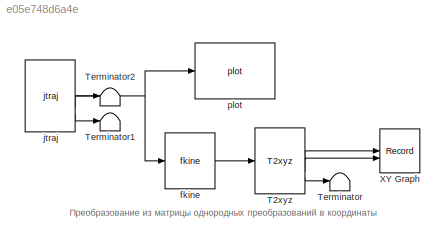
MODEL slx_e05e748d6a4e
KIND model
CONFIG AbsTol = auto
CONFIG EnableMultiTasking = off
CONFIG FixedStep = auto
CONFIG MaxStep = auto
CONFIG MinStep = auto
CONFIG RelTol = 1e-3
CONFIG SampleTimeConstraint = Unconstrained
CONFIG SolverName = VariableStepAuto
CONFIG StartTime = 0.0
CONFIG StopTime = 10.0
BLOCK [Reference] T2xyz  REF=roblocks/Toolbox/T2xyz  (lib defined in mdl_2a292b13c81b, mdl_69400f8cfe22, +12 more)
  SourceBlock = roblocks/Toolbox/T2xyz
BLOCK [Terminator] Terminator
BLOCK [Terminator] Terminator1
BLOCK [Terminator] Terminator2
BLOCK [Record] XY Graph
  CompatibilityTag = XY
  FileSettingsInternal = {"entries":[{"content":{"excelSettings":{"content":{},"type":"Streamout.ExcelSettings"}},"type":"Streamout.FileSettingStorage","uuid":"320995ab-50ca-47a6-835d-657ee2e82bbb"}],"packageUris":["http://schema.mathworks.com/mf0/streamout_blocks/R2020a"],"version":"1.0"}
  Layout = [1 1]
  SignalsInternal = {"entries":[{"content":{"signals":[{"content":{"blockPath":["lr2/XY Graph"],"channel":[],"dimensions":[1],"domain":"lr2/XY Graph","lineColor":"#a2142f","plots":[1],"port":1,"sid":[""],"signalID":117,"signalName":"T2xyz:1"},"type":"RecordBlkView.Signal","uuid":"cb58e3d4-ba62-4844-acf9-b532e0bf00de"},{"content":{"blockPath":["lr2/XY Graph"],"channel":[],"dimensions":[1],"domain":"lr2/XY Graph","line...<+341ch>
  VisualizationBindings = {"xyplotplugin":{"info":[{"series":[{"bindingParametersList":[{"parameter":"X-Axis","signalID":117,"signalName":"T2xyz:1"},{"parameter":"Y-Axis","signalID":121,"signalName":"T2xyz:2"}],"seriesID":50130}],"subplotID":1}]}}
  st = -1
BLOCK [Reference] fkine  REF=roblocks/Arm/fkine  (lib defined in mdl_2a292b13c81b, mdl_69400f8cfe22, +12 more)
  SourceBlock = roblocks/Arm/fkine
BLOCK [Reference] jtraj  REF=roblocks/Toolbox/jtraj  (lib defined in mdl_2a292b13c81b, mdl_69400f8cfe22, +12 more)
  SourceBlock = roblocks/Toolbox/jtraj
BLOCK [Reference] plot  REF=roblocks/Arm/plot  (lib defined in mdl_2a292b13c81b, mdl_69400f8cfe22, +12 more)
  SourceBlock = roblocks/Arm/plot
ANNOTATION (root): Преобразование из матрицы однородных преобразований в координаты
LINE T2xyz:1 -> XY Graph:1
LINE T2xyz:2 -> XY Graph:2
LINE T2xyz:3 -> Terminator:1
LINE fkine:1 -> T2xyz:1
NET jtraj:1 -> fkine:1, plot:1
LINE jtraj:2 -> Terminator2:1
LINE jtraj:3 -> Terminator1:1
note: NET lines group one-source signal fan-out (src -> all destinations, sorted); 1:1 wires keep LINE
